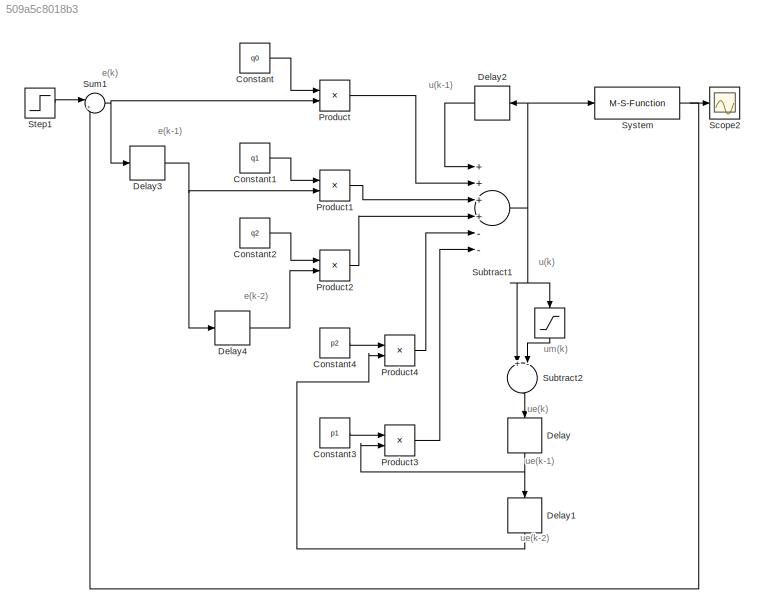
MODEL slx_509a5c8018b3
KIND model
CONFIG AbsTol = auto
CONFIG FixedStep = periodaCurrent
CONFIG MaxStep = auto
CONFIG MinStep = auto
CONFIG RelTol = 1e-3
CONFIG SampleTimeConstraint = Unconstrained
CONFIG Solver = ode3
CONFIG SolverMode = Auto
CONFIG SolverName = ode3
CONFIG StartTime = 0.0
CONFIG StopTime = 0.9
BLOCK [Saturate]  
  InputPortMap = u0
  LowerLimit = 0
  Ports = [1, 1]
  UpperLimit = 255
BLOCK [Constant] Constant
  Value = q0
BLOCK [Constant] Constant1
  Value = q1
BLOCK [Constant] Constant2
  Value = q2
BLOCK [Constant] Constant3
  Value = p1
BLOCK [Constant] Constant4
  Value = p2
BLOCK [Delay] Delay
  DelayLength = 1
  InitialCondition = 0
  InputPortMap = u0
  Ports = [1, 1]
  SampleTime = periodaCurrent
BLOCK [Delay] Delay1
  DelayLength = 1
  InitialCondition = 0
  InputPortMap = u0
  Ports = [1, 1]
  SampleTime = periodaCurrent
BLOCK [Delay] Delay2
  DelayLength = 1
  InitialCondition = 0
  InputPortMap = u0
  Ports = [1, 1]
  SampleTime = periodaCurrent
BLOCK [Delay] Delay3
  DelayLength = 1
  InitialCondition = 0
  InputPortMap = u0
  Ports = [1, 1]
  SampleTime = periodaCurrent
BLOCK [Delay] Delay4
  DelayLength = 1
  InitialCondition = 0
  InputPortMap = u0
  Ports = [1, 1]
  SampleTime = periodaCurrent
BLOCK [Product] Product
  InputSameDT = off
  OutDataTypeStr = Inherit: Inherit via internal rule
  Ports = [2, 1]
  RndMeth = Floor
  SaturateOnIntegerOverflow = off
BLOCK [Product] Product1
  InputSameDT = off
  OutDataTypeStr = Inherit: Inherit via internal rule
  Ports = [2, 1]
  RndMeth = Floor
  SaturateOnIntegerOverflow = off
BLOCK [Product] Product2
  InputSameDT = off
  OutDataTypeStr = Inherit: Inherit via internal rule
  Ports = [2, 1]
  RndMeth = Floor
  SaturateOnIntegerOverflow = off
BLOCK [Product] Product3
  InputSameDT = off
  OutDataTypeStr = Inherit: Inherit via internal rule
  Ports = [2, 1]
  RndMeth = Floor
  SaturateOnIntegerOverflow = off
BLOCK [Product] Product4
  InputSameDT = off
  OutDataTypeStr = Inherit: Inherit via internal rule
  Ports = [2, 1]
  RndMeth = Floor
  SaturateOnIntegerOverflow = off
BLOCK [Scope] Scope2
  Floating = off
  LimitDataPoints = off
  NumInputPorts = 1
  Ports = [1]
  SaveName = ScopeData2
  YMax = 49.15
  YMin = 48.05
BLOCK [Step] Step1
  After = stepValue
  SampleTime = 0
  Time = 0
BLOCK [Sum] Subtract1
  InputSameDT = off
  Inputs = ++++--
  OutDataTypeStr = Inherit: Inherit via internal rule
  Ports = [6, 1]
  SaturateOnIntegerOverflow = off
BLOCK [Sum] Subtract2
  InputSameDT = off
  Inputs = +-
  OutDataTypeStr = Inherit: Inherit via internal rule
  Ports = [2, 1]
  SaturateOnIntegerOverflow = off
BLOCK [Sum] Sum1
  IconShape = round
  InputSameDT = off
  Inputs = |+-
  OutDataTypeStr = Inherit: Inherit via internal rule
  Ports = [2, 1]
  SaturateOnIntegerOverflow = off
BLOCK [M-S-Function] System
  FunctionName = RegulatorPrud
  Ports = [1, 1]
ANNOTATION (root): e(k)
ANNOTATION (root): e(k-1)
ANNOTATION (root): e(k-2)
ANNOTATION (root): u(k)
ANNOTATION (root): u(k-1)
ANNOTATION (root): ue(k)
ANNOTATION (root): ue(k-1)
ANNOTATION (root): ue(k-2)
ANNOTATION (root): um(k)
LINE  :1 -> Subtract2:2
LINE Constant1:1 -> Product1:1
LINE Constant2:1 -> Product2:1
LINE Constant3:1 -> Product3:1
LINE Constant4:1 -> Product4:1
LINE Constant:1 -> Product:1
LINE Delay1:1 -> Product4:2
LINE Delay2:1 -> Subtract1:1
NET Delay3:1 -> Delay4:1, Product1:2
LINE Delay4:1 -> Product2:2
NET Delay:1 -> Delay1:1, Product3:2
LINE Product1:1 -> Subtract1:3
LINE Product2:1 -> Subtract1:4
LINE Product3:1 -> Subtract1:6
LINE Product4:1 -> Subtract1:5
LINE Product:1 -> Subtract1:2
LINE Step1:1 -> Sum1:1
NET Subtract1:1 ->  :1, Delay2:1, Subtract2:1, System:1
LINE Subtract2:1 -> Delay:1
NET Sum1:1 -> Delay3:1, Product:2
NET System:1 -> Scope2:1, Sum1:2
note: NET lines group one-source signal fan-out (src -> all destinations, sorted); 1:1 wires keep LINE
